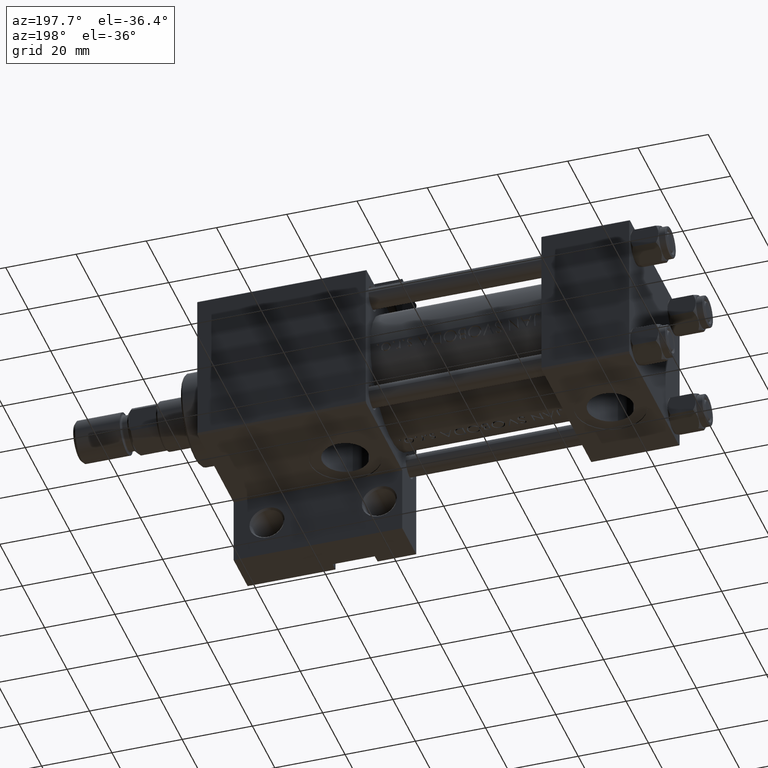
[diagram: clean part render]
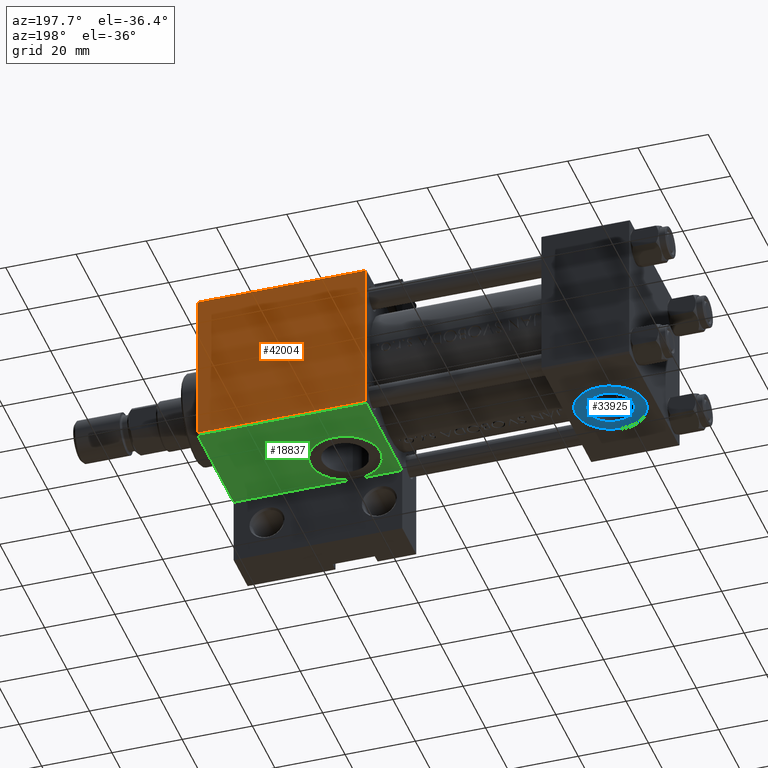
[diagram: same view with three faces highlighted in distinct colors, each labeled with its STEP entity id]
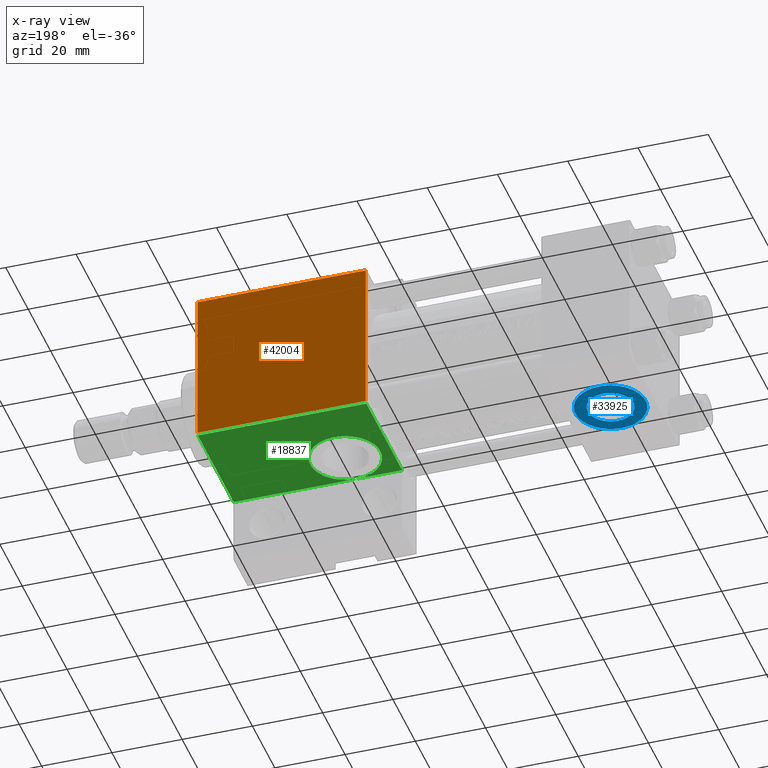
[diagram: x-ray of the same camera — body ghosted, the three highlighted faces saturated]
A machine part, auxiliary view with three faces highlighted in distinct colors.
The next image is the same camera in x-ray (body ghosted, the three faces saturated) — at least one of them is partly hidden behind the body in this view.
Their STEP definitions:

[orange] entity #42004 — the highlighted planar face has unit normal (0, -1, -0).
#38 = ORIENTED_EDGE ( 'NONE', *, *, #23321, .T. ) ;
#2052 = DIRECTION ( 'NONE',  ( 0.000000000000000000, -1.000000000000000000, -2.312964634635742957E-16 ) ) ;
#3015 = LINE ( 'NONE', #44185, #34886 ) ;
#6380 = DIRECTION ( 'NONE',  ( 0.000000000000000000, 2.312964634635742957E-16, -1.000000000000000000 ) ) ;
#9680 = VERTEX_POINT ( 'NONE', #21781 ) ;
#9783 = PLANE ( 'NONE',  #40510 ) ;
#10720 = LINE ( 'NONE', #15853, #17402 ) ;
#10727 = EDGE_LOOP ( 'NONE', ( #29013, #23276, #38, #43310 ) ) ;
#10807 = DIRECTION ( 'NONE',  ( 0.000000000000000000, -1.000000000000000000, -2.312964634635742957E-16 ) ) ;
#13036 = CARTESIAN_POINT ( 'NONE',  ( 75.00000000000001421, 22.50000000000000355, 22.50000000000000355 ) ) ;
#15853 = CARTESIAN_POINT ( 'NONE',  ( 123.0000000000000142, -21.99999999999998224, 22.49999999999999289 ) ) ;
#17402 = VECTOR ( 'NONE', #29737, 1000.000000000000000 ) ;
#21667 = CARTESIAN_POINT ( 'NONE',  ( 75.00000000000001421, 21.99999999999998934, 22.50000000000000355 ) ) ;
#21781 = CARTESIAN_POINT ( 'NONE',  ( 123.0000000000000142, -21.99999999999996803, 22.49999999999999289 ) ) ;
#22703 = LINE ( 'NONE', #33194, #31445 ) ;
#23276 = ORIENTED_EDGE ( 'NONE', *, *, #27895, .T. ) ;
#23321 = EDGE_CURVE ( 'NONE', #38222, #41421, #45681, .T. ) ;
#24411 = DIRECTION ( 'NONE',  ( 0.000000000000000000, 1.000000000000000000, 2.312964634635742957E-16 ) ) ;
#26200 = CARTESIAN_POINT ( 'NONE',  ( 75.00000000000001421, -21.99999999999996803, 22.49999999999999289 ) ) ;
#27274 = EDGE_CURVE ( 'NONE', #41421, #9680, #10720, .T. ) ;
#27895 = EDGE_CURVE ( 'NONE', #37911, #38222, #22703, .T. ) ;
#29013 = ORIENTED_EDGE ( 'NONE', *, *, #32091, .F. ) ;
#29737 = DIRECTION ( 'NONE',  ( 1.000000000000000000, 0.000000000000000000, 0.000000000000000000 ) ) ;
#31445 = VECTOR ( 'NONE', #44385, 1000.000000000000000 ) ;
#32091 = EDGE_CURVE ( 'NONE', #37911, #9680, #3015, .T. ) ;
#33194 = CARTESIAN_POINT ( 'NONE',  ( 75.00000000000001421, 21.99999999999998934, 22.50000000000000355 ) ) ;
#34886 = VECTOR ( 'NONE', #10807, 1000.000000000000000 ) ;
#36096 = FACE_OUTER_BOUND ( 'NONE', #10727, .T. ) ;
#37911 = VERTEX_POINT ( 'NONE', #42657 ) ;
#38222 = VERTEX_POINT ( 'NONE', #21667 ) ;
#38617 = VECTOR ( 'NONE', #2052, 1000.000000000000000 ) ;
#40510 = AXIS2_PLACEMENT_3D ( 'NONE', #47285, #6380, #24411 ) ;
#41421 = VERTEX_POINT ( 'NONE', #26200 ) ;
#42004 = ADVANCED_FACE ( 'NONE', ( #36096 ), #9783, .F. ) ;
#42657 = CARTESIAN_POINT ( 'NONE',  ( 123.0000000000000142, 21.99999999999998934, 22.50000000000000355 ) ) ;
#43310 = ORIENTED_EDGE ( 'NONE', *, *, #27274, .T. ) ;
#44185 = CARTESIAN_POINT ( 'NONE',  ( 123.0000000000000142, 22.50000000000000355, 22.50000000000000355 ) ) ;
#44385 = DIRECTION ( 'NONE',  ( -1.000000000000000000, 0.000000000000000000, 0.000000000000000000 ) ) ;
#45681 = LINE ( 'NONE', #13036, #38617 ) ;
#47285 = CARTESIAN_POINT ( 'NONE',  ( 123.0000000000000142, 22.50000000000000355, 22.50000000000000355 ) ) ;

[blue] entity #33925 — the highlighted planar face has unit normal (0, 0, -1).
#1064 = CIRCLE ( 'NONE', #28294, 9.999999999999996447 ) ;
#1200 = DIRECTION ( 'NONE',  ( 0.000000000000000000, 0.000000000000000000, 1.000000000000000000 ) ) ;
#2760 = PLANE ( 'NONE',  #20949 ) ;
#2990 = FACE_BOUND ( 'NONE', #35252, .T. ) ;
#3076 = VERTEX_POINT ( 'NONE', #30899 ) ;
#3220 = DIRECTION ( 'NONE',  ( 0.000000000000000000, 0.000000000000000000, 1.000000000000000000 ) ) ;
#3667 = EDGE_LOOP ( 'NONE', ( #20800, #42015 ) ) ;
#4593 = AXIS2_PLACEMENT_3D ( 'NONE', #22900, #19734, #1200 ) ;
#5502 = VERTEX_POINT ( 'NONE', #23779 ) ;
#6870 = DIRECTION ( 'NONE',  ( 0.000000000000000000, 1.000000000000000000, 0.000000000000000000 ) ) ;
#7653 = VERTEX_POINT ( 'NONE', #15196 ) ;
#8418 = DIRECTION ( 'NONE',  ( 0.000000000000000000, 0.000000000000000000, 1.000000000000000000 ) ) ;
#13912 = CIRCLE ( 'NONE', #4593, 6.499999999999998224 ) ;
#13972 = DIRECTION ( 'NONE',  ( 0.000000000000000000, -0.000000000000000000, 1.000000000000000000 ) ) ;
#15196 = CARTESIAN_POINT ( 'NONE',  ( 12.50000000000000000, 22.30000000000000071, 6.499999999999998224 ) ) ;
#17395 = CARTESIAN_POINT ( 'NONE',  ( 12.50000000000000000, 22.30000000000000071, 0.000000000000000000 ) ) ;
#18119 = FACE_OUTER_BOUND ( 'NONE', #3667, .T. ) ;
#19734 = DIRECTION ( 'NONE',  ( 0.000000000000000000, 1.000000000000000000, 0.000000000000000000 ) ) ;
#20800 = ORIENTED_EDGE ( 'NONE', *, *, #28414, .T. ) ;
#20804 = EDGE_CURVE ( 'NONE', #5502, #3076, #43968, .T. ) ;
#20949 = AXIS2_PLACEMENT_3D ( 'NONE', #29058, #32258, #13972 ) ;
#21507 = AXIS2_PLACEMENT_3D ( 'NONE', #30831, #46158, #8418 ) ;
#21752 = ORIENTED_EDGE ( 'NONE', *, *, #26192, .F. ) ;
#22900 = CARTESIAN_POINT ( 'NONE',  ( 12.50000000000000000, 22.30000000000000071, 0.000000000000000000 ) ) ;
#23367 = EDGE_CURVE ( 'NONE', #7653, #33306, #42515, .T. ) ;
#23779 = CARTESIAN_POINT ( 'NONE',  ( 12.50000000000000178, 22.30000000000000071, -9.999999999999996447 ) ) ;
#26192 = EDGE_CURVE ( 'NONE', #33306, #7653, #13912, .T. ) ;
#28294 = AXIS2_PLACEMENT_3D ( 'NONE', #17395, #6870, #3220 ) ;
#28414 = EDGE_CURVE ( 'NONE', #3076, #5502, #1064, .T. ) ;
#29058 = CARTESIAN_POINT ( 'NONE',  ( 12.50000000000000000, 22.30000000000000071, 0.000000000000000000 ) ) ;
#30831 = CARTESIAN_POINT ( 'NONE',  ( 12.50000000000000000, 22.30000000000000071, 0.000000000000000000 ) ) ;
#30899 = CARTESIAN_POINT ( 'NONE',  ( 12.50000000000000000, 22.30000000000000071, 9.999999999999996447 ) ) ;
#31667 = CARTESIAN_POINT ( 'NONE',  ( 12.50000000000000000, 22.30000000000000071, 0.000000000000000000 ) ) ;
#32258 = DIRECTION ( 'NONE',  ( 0.000000000000000000, 1.000000000000000000, 0.000000000000000000 ) ) ;
#33306 = VERTEX_POINT ( 'NONE', #47210 ) ;
#33831 = ORIENTED_EDGE ( 'NONE', *, *, #23367, .F. ) ;
#33925 = ADVANCED_FACE ( 'NONE', ( #2990, #18119 ), #2760, .T. ) ;
#35252 = EDGE_LOOP ( 'NONE', ( #33831, #21752 ) ) ;
#35426 = AXIS2_PLACEMENT_3D ( 'NONE', #31667, #45557, #46515 ) ;
#42015 = ORIENTED_EDGE ( 'NONE', *, *, #20804, .T. ) ;
#42515 = CIRCLE ( 'NONE', #21507, 6.499999999999998224 ) ;
#43968 = CIRCLE ( 'NONE', #35426, 9.999999999999996447 ) ;
#45557 = DIRECTION ( 'NONE',  ( 0.000000000000000000, 1.000000000000000000, 0.000000000000000000 ) ) ;
#46158 = DIRECTION ( 'NONE',  ( 0.000000000000000000, 1.000000000000000000, 0.000000000000000000 ) ) ;
#46515 = DIRECTION ( 'NONE',  ( 0.000000000000000000, 0.000000000000000000, 1.000000000000000000 ) ) ;
#47210 = CARTESIAN_POINT ( 'NONE',  ( 12.50000000000000000, 22.30000000000000071, -6.499999999999998224 ) ) ;

[green] entity #18837 — the highlighted planar face has unit normal (0, 0, -1).
#2235 = CARTESIAN_POINT ( 'NONE',  ( 88.00000000000001421, 22.50000000000000355, 9.999999999999994671 ) ) ;
#2356 = CARTESIAN_POINT ( 'NONE',  ( 75.00000000000001421, 22.50000000000000000, -9.999999999999998224 ) ) ;
#3166 = VECTOR ( 'NONE', #37122, 1000.000000000000000 ) ;
#3253 = DIRECTION ( 'NONE',  ( 0.000000000000000000, 0.000000000000000000, -1.000000000000000000 ) ) ;
#4226 = LINE ( 'NONE', #18865, #3166 ) ;
#5823 = DIRECTION ( 'NONE',  ( 1.000000000000000000, 0.000000000000000000, 0.000000000000000000 ) ) ;
#6180 = CARTESIAN_POINT ( 'NONE',  ( 122.9999999999999858, 22.49999999999999289, -9.999999999999998224 ) ) ;
#10267 = LINE ( 'NONE', #39041, #26308 ) ;
#10300 = EDGE_CURVE ( 'NONE', #34847, #26226, #4226, .T. ) ;
#12195 = ORIENTED_EDGE ( 'NONE', *, *, #10300, .T. ) ;
#12371 = ORIENTED_EDGE ( 'NONE', *, *, #36487, .F. ) ;
#12698 = PLANE ( 'NONE',  #31474 ) ;
#13426 = DIRECTION ( 'NONE',  ( 0.000000000000000000, -0.000000000000000000, 1.000000000000000000 ) ) ;
#13661 = DIRECTION ( 'NONE',  ( -0.000000000000000000, 1.000000000000000000, 0.000000000000000000 ) ) ;
#14824 = DIRECTION ( 'NONE',  ( 0.000000000000000000, 0.000000000000000000, 1.000000000000000000 ) ) ;
#14904 = AXIS2_PLACEMENT_3D ( 'NONE', #28378, #24003, #27893 ) ;
#15315 = ORIENTED_EDGE ( 'NONE', *, *, #30134, .F. ) ;
#16184 = VECTOR ( 'NONE', #24295, 1000.000000000000000 ) ;
#16359 = CARTESIAN_POINT ( 'NONE',  ( 123.0000000000000142, 22.50000000000000355, 22.50000000000000355 ) ) ;
#18837 = ADVANCED_FACE ( 'NONE', ( #47023 ), #12698, .T. ) ;
#18865 = CARTESIAN_POINT ( 'NONE',  ( 75.00000000000001421, 22.50000000000000000, -9.999999999999998224 ) ) ;
#18986 = VERTEX_POINT ( 'NONE', #29915 ) ;
#20922 = LINE ( 'NONE', #38957, #24822 ) ;
#22119 = DIRECTION ( 'NONE',  ( 0.000000000000000000, 1.000000000000000000, 0.000000000000000000 ) ) ;
#23510 = ORIENTED_EDGE ( 'NONE', *, *, #31556, .T. ) ;
#24003 = DIRECTION ( 'NONE',  ( 0.000000000000000000, 1.000000000000000000, 0.000000000000000000 ) ) ;
#24295 = DIRECTION ( 'NONE',  ( -1.000000000000000000, 1.445602896647340149E-16, -0.000000000000000000 ) ) ;
#24692 = AXIS2_PLACEMENT_3D ( 'NONE', #44782, #22119, #14824 ) ;
#24822 = VECTOR ( 'NONE', #5823, 1000.000000000000000 ) ;
#26226 = VERTEX_POINT ( 'NONE', #31889 ) ;
#26235 = EDGE_CURVE ( 'NONE', #18986, #43107, #20922, .T. ) ;
#26308 = VECTOR ( 'NONE', #47291, 1000.000000000000000 ) ;
#27893 = DIRECTION ( 'NONE',  ( 0.000000000000000000, 0.000000000000000000, 1.000000000000000000 ) ) ;
#28120 = LINE ( 'NONE', #31784, #31133 ) ;
#28378 = CARTESIAN_POINT ( 'NONE',  ( 88.00000000000001421, 22.50000000000000355, 0.000000000000000000 ) ) ;
#28533 = VERTEX_POINT ( 'NONE', #40493 ) ;
#29915 = CARTESIAN_POINT ( 'NONE',  ( 75.00000000000001421, 22.50000000000000355, 21.99999999999998934 ) ) ;
#30134 = EDGE_CURVE ( 'NONE', #26226, #36770, #34827, .T. ) ;
#30959 = EDGE_CURVE ( 'NONE', #43107, #34847, #10267, .T. ) ;
#31133 = VECTOR ( 'NONE', #3253, 1000.000000000000000 ) ;
#31474 = AXIS2_PLACEMENT_3D ( 'NONE', #16359, #13661, #13426 ) ;
#31556 = EDGE_CURVE ( 'NONE', #26226, #28533, #39394, .T. ) ;
#31784 = CARTESIAN_POINT ( 'NONE',  ( 75.00000000000001421, 22.50000000000000355, 22.50000000000000355 ) ) ;
#31889 = CARTESIAN_POINT ( 'NONE',  ( 88.00000000000001421, 22.49999999999999645, -9.999999999999998224 ) ) ;
#34084 = ORIENTED_EDGE ( 'NONE', *, *, #30959, .T. ) ;
#34827 = CIRCLE ( 'NONE', #24692, 9.999999999999994671 ) ;
#34847 = VERTEX_POINT ( 'NONE', #6180 ) ;
#36257 = EDGE_LOOP ( 'NONE', ( #12371, #42877, #34084, #12195, #40906, #15315, #23510 ) ) ;
#36487 = EDGE_CURVE ( 'NONE', #18986, #28533, #28120, .T. ) ;
#36770 = VERTEX_POINT ( 'NONE', #2235 ) ;
#37122 = DIRECTION ( 'NONE',  ( -1.000000000000000000, 1.445602896647340149E-16, -0.000000000000000000 ) ) ;
#38957 = CARTESIAN_POINT ( 'NONE',  ( 123.0000000000000142, 22.50000000000000355, 21.99999999999998934 ) ) ;
#39041 = CARTESIAN_POINT ( 'NONE',  ( 123.0000000000000142, 22.50000000000000355, 22.50000000000000355 ) ) ;
#39394 = LINE ( 'NONE', #2356, #16184 ) ;
#40493 = CARTESIAN_POINT ( 'NONE',  ( 75.00000000000001421, 22.50000000000000355, -9.999999999999984013 ) ) ;
#40614 = EDGE_CURVE ( 'NONE', #36770, #26226, #46014, .T. ) ;
#40906 = ORIENTED_EDGE ( 'NONE', *, *, #40614, .F. ) ;
#42346 = CARTESIAN_POINT ( 'NONE',  ( 123.0000000000000142, 22.50000000000000355, 21.99999999999998934 ) ) ;
#42877 = ORIENTED_EDGE ( 'NONE', *, *, #26235, .T. ) ;
#43107 = VERTEX_POINT ( 'NONE', #42346 ) ;
#44782 = CARTESIAN_POINT ( 'NONE',  ( 88.00000000000001421, 22.50000000000000355, 0.000000000000000000 ) ) ;
#46014 = CIRCLE ( 'NONE', #14904, 9.999999999999994671 ) ;
#47023 = FACE_OUTER_BOUND ( 'NONE', #36257, .T. ) ;
#47291 = DIRECTION ( 'NONE',  ( 0.000000000000000000, 0.000000000000000000, -1.000000000000000000 ) ) ;